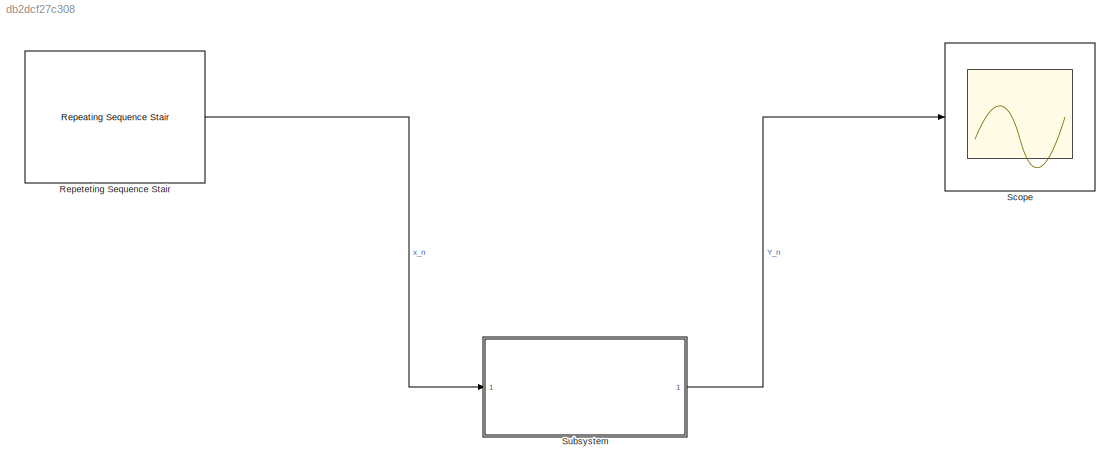
MODEL slx_db2dcf27c308
KIND model
CONFIG AbsTol = auto
CONFIG EnableMultiTasking = off
CONFIG FixedStep = auto
CONFIG MaxStep = auto
CONFIG MinStep = auto
CONFIG RelTol = 1e-3
CONFIG SampleTimeConstraint = Unconstrained
CONFIG SolverName = VariableStepAuto
CONFIG StartTime = 0.0
CONFIG StopTime = 10.0
BLOCK [Reference] Repeteting Sequence Stair  REF=simulink/Sources/Repeating
Sequence
Stair
  Ports = [0, 1]
  SourceBlock = simulink/Sources/Repeating\nSequence\nStair
  SourceProductBaseCode = SL
  SourceType = Repeating Sequence Stair
BLOCK [Scope] Scope
  Floating = off
  NumInputPorts = 1
  Ports = [1]
  ScopeSpecificationString = Simulink.scopes.TimeScopeBlockCfg('CurrentConfiguration', extmgr.ConfigurationSet(extmgr.Configuration('Core','General UI',true),extmgr.Configuration('Core','Source UI',true),extmgr.Configuration('Sources','WiredSimulink',true),extmgr.Configuration('Visuals','Time Domain',true,'SerializedDisplays',{struct('MinYLimReal','-4.00000','MaxYLimReal','6.00000','YLabelReal','','MinYLimMag','0.00000','MaxY...<+1436ch>
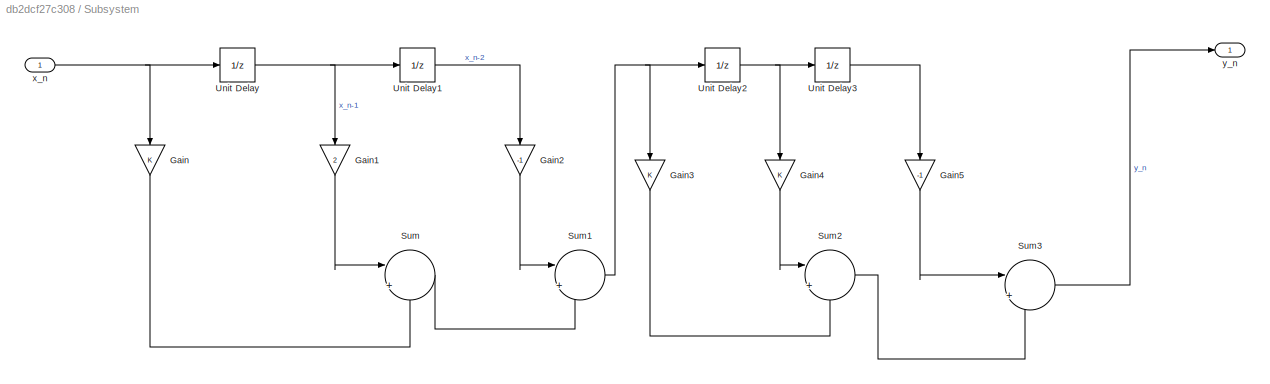
BLOCK [SubSystem] Subsystem
  Ports = [1, 1]
  RequestExecContextInheritance = off
BLOCK [Gain] Subsystem/Gain
  NameLocation = left
BLOCK [Gain] Subsystem/Gain1
  Gain = 2
  NameLocation = left
BLOCK [Gain] Subsystem/Gain2
  Gain = -1
  NameLocation = left
BLOCK [Gain] Subsystem/Gain3
  NameLocation = left
BLOCK [Gain] Subsystem/Gain4
  NameLocation = left
BLOCK [Gain] Subsystem/Gain5
  Gain = -1
  NameLocation = left
BLOCK [Sum] Subsystem/Sum
  Inputs = |++
  Ports = [2, 1]
BLOCK [Sum] Subsystem/Sum1
  Inputs = |++
  Ports = [2, 1]
BLOCK [Sum] Subsystem/Sum2
  Inputs = |++
  Ports = [2, 1]
BLOCK [Sum] Subsystem/Sum3
  Inputs = |++
  Ports = [2, 1]
BLOCK [UnitDelay] Subsystem/Unit Delay
  HasFrameUpgradeWarning = on
  SampleTime = -1
BLOCK [UnitDelay] Subsystem/Unit Delay1
  HasFrameUpgradeWarning = on
  SampleTime = -1
BLOCK [UnitDelay] Subsystem/Unit Delay2
  HasFrameUpgradeWarning = on
  SampleTime = -1
BLOCK [UnitDelay] Subsystem/Unit Delay3
  HasFrameUpgradeWarning = on
  SampleTime = -1
BLOCK [Inport] Subsystem/x_n
  OutDataTypeStr = double
  PortDimensions = 1
  SampleTime = [0.20000000000000001,0]
  SamplingMode = Sample based
  SignalType = real
BLOCK [Outport] Subsystem/y_n
  OutDataTypeStr = double
  PortDimensions = 1
  SampleTime = [0.20000000000000001,0]
  SamplingMode = Sample based
  SignalType = real
LINE Repeteting Sequence Stair:1 -> Subsystem:1
LINE Subsystem/Gain1:1 -> Subsystem/Sum:1
LINE Subsystem/Gain2:1 -> Subsystem/Sum1:1
LINE Subsystem/Gain3:1 -> Subsystem/Sum2:2
LINE Subsystem/Gain4:1 -> Subsystem/Sum2:1
LINE Subsystem/Gain5:1 -> Subsystem/Sum3:1
LINE Subsystem/Gain:1 -> Subsystem/Sum:2
NET Subsystem/Sum1:1 -> Subsystem/Gain3:1, Subsystem/Unit Delay2:1
LINE Subsystem/Sum2:1 -> Subsystem/Sum3:2
LINE Subsystem/Sum3:1 -> Subsystem/y_n:1
LINE Subsystem/Sum:1 -> Subsystem/Sum1:2
LINE Subsystem/Unit Delay1:1 -> Subsystem/Gain2:1
NET Subsystem/Unit Delay2:1 -> Subsystem/Gain4:1, Subsystem/Unit Delay3:1
LINE Subsystem/Unit Delay3:1 -> Subsystem/Gain5:1
NET Subsystem/Unit Delay:1 -> Subsystem/Gain1:1, Subsystem/Unit Delay1:1
NET Subsystem/x_n:1 -> Subsystem/Gain:1, Subsystem/Unit Delay:1
LINE Subsystem:1 -> Scope:1
note: NET lines group one-source signal fan-out (src -> all destinations, sorted); 1:1 wires keep LINE
